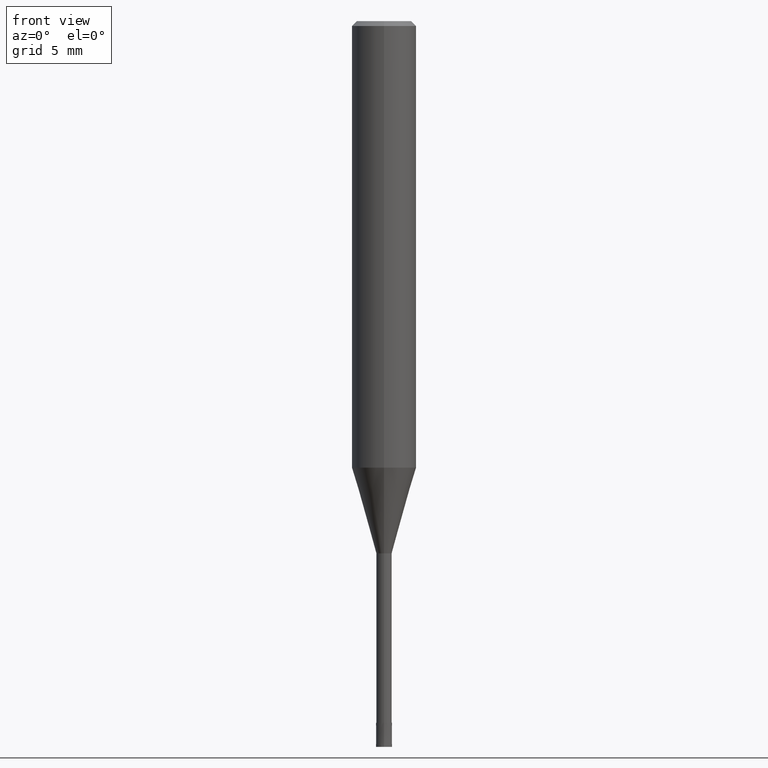
[diagram: clean part render]
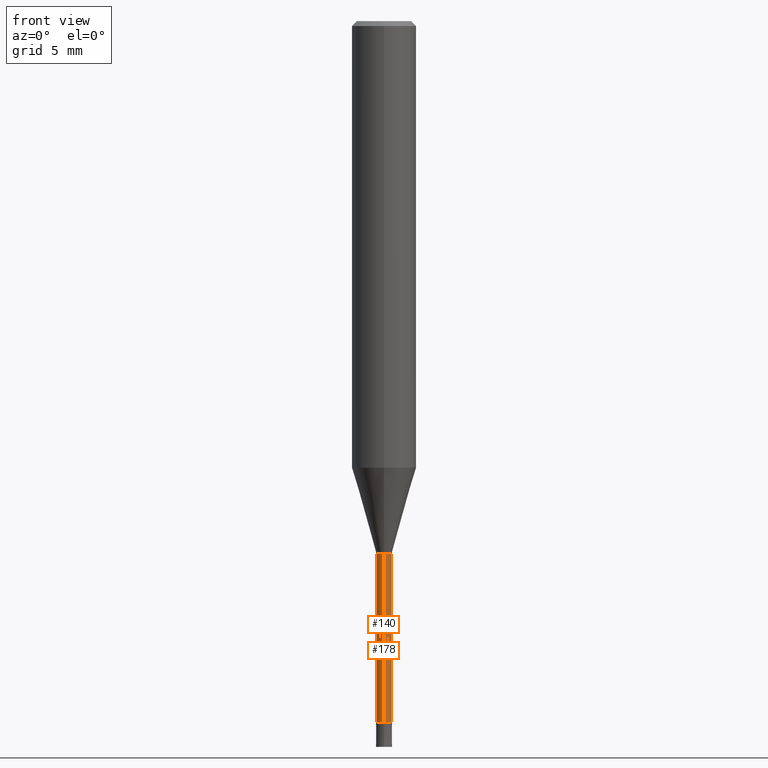
[diagram: same view with one multi-face feature highlighted, each face labeled with its STEP entity id]
A machine part, front view. The highlighted faces form ONE feature: a constant-radius fillet chain: 2 tangent blend faces with common blend radius 0.4749 mm. The faces share edges in the B-rep.
Their STEP definitions:
[1] entity #140 (Cylinder):
#108=VERTEX_POINT('',#248);
#116=EDGE_CURVE('',#202,#182,#257,.T.);
#140=ADVANCED_FACE('',(#286),#287,.T.);
#182=VERTEX_POINT('',#335);
#186=VERTEX_POINT('',#339);
#192=EDGE_CURVE('',#108,#186,#345,.T.);
#196=EDGE_CURVE('',#186,#182,#349,.T.);
#202=VERTEX_POINT('',#355);
#208=EDGE_CURVE('',#202,#108,#361,.T.);
#248=CARTESIAN_POINT('',(5.81626787747938E-017,-0.47495,-33.0));
#257=CIRCLE('',#406,0.47495);
#286=FACE_OUTER_BOUND('',#438,.T.);
#287=CYLINDRICAL_SURFACE('',#439,0.47495);
#335=CARTESIAN_POINT('',(0.0,0.47495,-43.5));
#339=CARTESIAN_POINT('',(0.0,0.47495,-33.0));
#345=CIRCLE('',#514,0.47495);
#349=LINE('',#520,#521);
#355=CARTESIAN_POINT('',(5.81626787747938E-017,-0.47495,-43.5));
#361=LINE('',#539,#540);
#406=AXIS2_PLACEMENT_3D('',#582,#583,#584);
#438=EDGE_LOOP('',(#628,#629,#630,#631));
#439=AXIS2_PLACEMENT_3D('',#632,#633,#634);
#514=AXIS2_PLACEMENT_3D('',#701,#702,#703);
#520=CARTESIAN_POINT('',(-5.81626787747938E-017,0.47495,-38.25));
#521=VECTOR('',#707,1.0);
#539=CARTESIAN_POINT('',(5.81626787747938E-017,-0.47495,-38.25));
#540=VECTOR('',#713,1.0);
#582=CARTESIAN_POINT('',(0.0,0.0,-43.5));
#583=DIRECTION('',(0.0,0.0,-1.0));
#584=DIRECTION('',(0.0,1.0,0.0));
#628=ORIENTED_EDGE('',*,*,#196,.T.);
#629=ORIENTED_EDGE('',*,*,#116,.F.);
#630=ORIENTED_EDGE('',*,*,#208,.T.);
#631=ORIENTED_EDGE('',*,*,#192,.T.);
#632=CARTESIAN_POINT('',(0.0,0.0,-38.25));
#633=DIRECTION('',(-0.0,-0.0,1.0));
#634=DIRECTION('',(0.0,1.0,0.0));
#701=CARTESIAN_POINT('',(0.0,0.0,-33.0));
#702=DIRECTION('',(0.0,0.0,-1.0));
#703=DIRECTION('',(0.0,1.0,0.0));
#707=DIRECTION('',(0.0,0.0,-1.0));
#713=DIRECTION('',(-0.0,-0.0,1.0));
[2] entity #178 (Cylinder):
#100=EDGE_CURVE('',#186,#108,#239,.T.);
#108=VERTEX_POINT('',#248);
#166=EDGE_CURVE('',#182,#202,#315,.T.);
#178=ADVANCED_FACE('',(#330),#331,.T.);
#182=VERTEX_POINT('',#335);
#186=VERTEX_POINT('',#339);
#196=EDGE_CURVE('',#186,#182,#349,.T.);
#202=VERTEX_POINT('',#355);
#208=EDGE_CURVE('',#202,#108,#361,.T.);
#239=CIRCLE('',#385,0.47495);
#248=CARTESIAN_POINT('',(5.81626787747938E-017,-0.47495,-33.0));
#315=CIRCLE('',#476,0.47495);
#330=FACE_OUTER_BOUND('',#494,.T.);
#331=CYLINDRICAL_SURFACE('',#495,0.47495);
#335=CARTESIAN_POINT('',(0.0,0.47495,-43.5));
#339=CARTESIAN_POINT('',(0.0,0.47495,-33.0));
#349=LINE('',#520,#521);
#355=CARTESIAN_POINT('',(5.81626787747938E-017,-0.47495,-43.5));
#361=LINE('',#539,#540);
#385=AXIS2_PLACEMENT_3D('',#560,#561,#562);
#476=AXIS2_PLACEMENT_3D('',#665,#666,#667);
#494=EDGE_LOOP('',(#687,#688,#689,#690));
#495=AXIS2_PLACEMENT_3D('',#691,#692,#693);
#520=CARTESIAN_POINT('',(-5.81626787747938E-017,0.47495,-38.25));
#521=VECTOR('',#707,1.0);
#539=CARTESIAN_POINT('',(5.81626787747938E-017,-0.47495,-38.25));
#540=VECTOR('',#713,1.0);
#560=CARTESIAN_POINT('',(0.0,0.0,-33.0));
#561=DIRECTION('',(0.0,0.0,-1.0));
#562=DIRECTION('',(0.0,1.0,0.0));
#665=CARTESIAN_POINT('',(0.0,0.0,-43.5));
#666=DIRECTION('',(0.0,0.0,-1.0));
#667=DIRECTION('',(0.0,1.0,0.0));
#687=ORIENTED_EDGE('',*,*,#196,.F.);
#688=ORIENTED_EDGE('',*,*,#100,.T.);
#689=ORIENTED_EDGE('',*,*,#208,.F.);
#690=ORIENTED_EDGE('',*,*,#166,.F.);
#691=CARTESIAN_POINT('',(0.0,0.0,-38.25));
#692=DIRECTION('',(-0.0,-0.0,1.0));
#693=DIRECTION('',(0.0,1.0,0.0));
#707=DIRECTION('',(0.0,0.0,-1.0));
#713=DIRECTION('',(-0.0,-0.0,1.0));